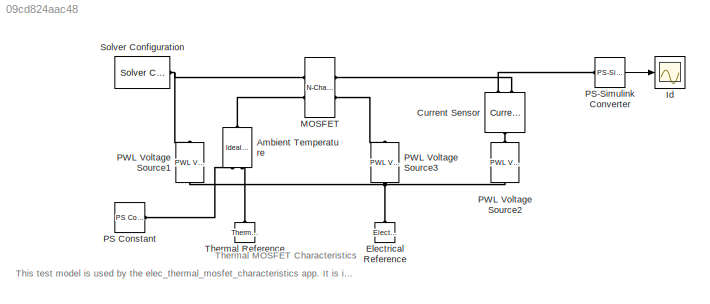
MODEL slx_09cd824aac48
KIND model
CONFIG AbsTol = 1e-3
CONFIG EnableMultiTasking = on
CONFIG FixedStep = auto
CONFIG MaxStep = auto
CONFIG MinStep = auto
CONFIG RelTol = 1e-3
CONFIG SampleTimeConstraint = Unconstrained
CONFIG Solver = VariableStepAuto
CONFIG SolverName = VariableStepAuto
CONFIG StartTime = 0.0
CONFIG StopTime = SimTime
WORKSPACE source: MAT-file member
WORKSPACE SimTime = 10
BLOCK [Reference] Ambient Temperature  REF=fl_lib/Thermal/Thermal Sources/Ideal Temperature
Source
  Ports = [0, 0, 0, 0, 0, 1, 2]
  SourceBlock = fl_lib/Thermal/Thermal Sources/Ideal Temperature\nSource
  SourceProductBaseCode = SS
  SourceProductName = Simscape
  SourceType = Ideal Temperature\nSource
BLOCK [Reference] Current Sensor  REF=fl_lib/Electrical/Electrical Sensors/Current Sensor
  Ports = [0, 0, 0, 0, 0, 1, 2]
  SourceBlock = fl_lib/Electrical/Electrical Sensors/Current Sensor
  SourceProductBaseCode = SS
  SourceProductName = Simscape
  SourceType = Current Sensor
BLOCK [Reference] Electrical Reference  REF=fl_lib/Electrical/Electrical Elements/Electrical Reference
  Ports = [0, 0, 0, 0, 0, 1]
  SourceBlock = fl_lib/Electrical/Electrical Elements/Electrical Reference
  SourceProductBaseCode = SS
  SourceProductName = Simscape
  SourceType = Electrical Reference
BLOCK [Scope] Id
  NumInputPorts = 1
  Ports = [1]
  ScopeSpecificationString = Simulink.scopes.TimeScopeBlockCfg('CurrentConfiguration', extmgr.ConfigurationSet(extmgr.Configuration('Core','General UI',true),extmgr.Configuration('Core','Source UI',true),extmgr.Configuration('Sources','WiredSimulink',true),extmgr.Configuration('Visuals','Time Domain',true,'SerializedDisplays',{struct('MinYLimReal','-1.67634','MaxYLimReal','15.08706','YLabelReal','','MinYLimMag','0.00000','Max...<+1374ch>
BLOCK [Reference] MOSFET  REF=elec_lib/Semiconductor
Devices/N-Channel MOSFET
  Ports = [0, 0, 0, 0, 0, 2, 2]
  SourceBlock = elec_lib/Semiconductor\nDevices/N-Channel MOSFET
  SourceProductBaseCode = SN
  SourceProductName = Simscape Electronics
  SourceType = N-Channel MOSFET
BLOCK [Reference] PS Constant  REF=fl_lib/Physical Signals/Sources/PS Constant
  Ports = [0, 0, 0, 0, 0, 0, 1]
  SourceBlock = fl_lib/Physical Signals/Sources/PS Constant
  SourceProductBaseCode = SS
  SourceProductName = Simscape
  SourceType = PS Constant
BLOCK [Reference] PS-Simulink Converter  REF=nesl_utility/PS-Simulink
Converter
  Ports = [0, 1, 0, 0, 0, 1]
  SourceBlock = nesl_utility/PS-Simulink\nConverter
  SourceProductBaseCode = SS
  SourceProductName = Simscape
  SourceType = PS-Simulink\nConverter
BLOCK [Reference] PWL Voltage Source1  REF=elec_lib/Additional
Components/SPICE-Compatible
Components/Sources/PWL Voltage Source
  Ports = [0, 0, 0, 0, 0, 1, 1]
  SourceBlock = elec_lib/Additional\nComponents/SPICE-Compatible\nComponents/Sources/PWL Voltage Source
  SourceProductBaseCode = SN
  SourceProductName = Simscape Electronics
  SourceType = PWL Voltage Source
BLOCK [Reference] PWL Voltage Source2  REF=elec_lib/Additional
Components/SPICE-Compatible
Components/Sources/PWL Voltage Source
  Ports = [0, 0, 0, 0, 0, 1, 1]
  SourceBlock = elec_lib/Additional\nComponents/SPICE-Compatible\nComponents/Sources/PWL Voltage Source
  SourceProductBaseCode = SN
  SourceProductName = Simscape Electronics
  SourceType = PWL Voltage Source
BLOCK [Reference] PWL Voltage Source3  REF=elec_lib/Additional
Components/SPICE-Compatible
Components/Sources/PWL Voltage Source
  Ports = [0, 0, 0, 0, 0, 1, 1]
  SourceBlock = elec_lib/Additional\nComponents/SPICE-Compatible\nComponents/Sources/PWL Voltage Source
  SourceProductBaseCode = SN
  SourceProductName = Simscape Electronics
  SourceType = PWL Voltage Source
BLOCK [Reference] Solver Configuration  REF=nesl_utility/Solver
Configuration
  Ports = [0, 0, 0, 0, 0, 0, 1]
  SourceBlock = nesl_utility/Solver\nConfiguration
  SourceProductBaseCode = SS
  SourceProductName = Simscape
  SourceType = Solver\nConfiguration
BLOCK [Reference] Thermal Reference  REF=fl_lib/Thermal/Thermal Elements/Thermal Reference
  Ports = [0, 0, 0, 0, 0, 1]
  SourceBlock = fl_lib/Thermal/Thermal Elements/Thermal Reference
  SourceProductBaseCode = SS
  SourceProductName = Simscape
  SourceType = Thermal Reference
ANNOTATION (root): Thermal MOSFET Characteristics
ANNOTATION (root): This test model is used by the elec_thermal_mosfet_characteristics app. It is invoked by the app when generating current-voltage and capacitance-voltage characteristics.
LINE PS-Simulink Converter:1 -> Id:1
PLINE Ambient Temperature:LConn1 -- MOSFET:LConn2
PLINE Ambient Temperature:RConn1 -- PS Constant:RConn1
PLINE Ambient Temperature:RConn2 -- Thermal Reference:LConn1
PLINE Current Sensor:LConn1 -- PWL Voltage Source2:LConn1
PLINE Current Sensor:RConn1 -- PS-Simulink Converter:LConn1
PLINE Current Sensor:RConn2 -- MOSFET:RConn1
PNET net1: Electrical Reference:LConn1 -- PWL Voltage Source1:RConn1 -- PWL Voltage Source2:RConn1 -- PWL Voltage Source3:RConn1
PNET net2: MOSFET:LConn1 -- PWL Voltage Source1:LConn1 -- Solver Configuration:RConn1
PLINE MOSFET:RConn2 -- PWL Voltage Source3:LConn1
note: PNET lines group multi-terminal physical nets as a canonical sorted terminal list (undirected conserving connections); 2-terminal nets keep the pairwise PLINE form
